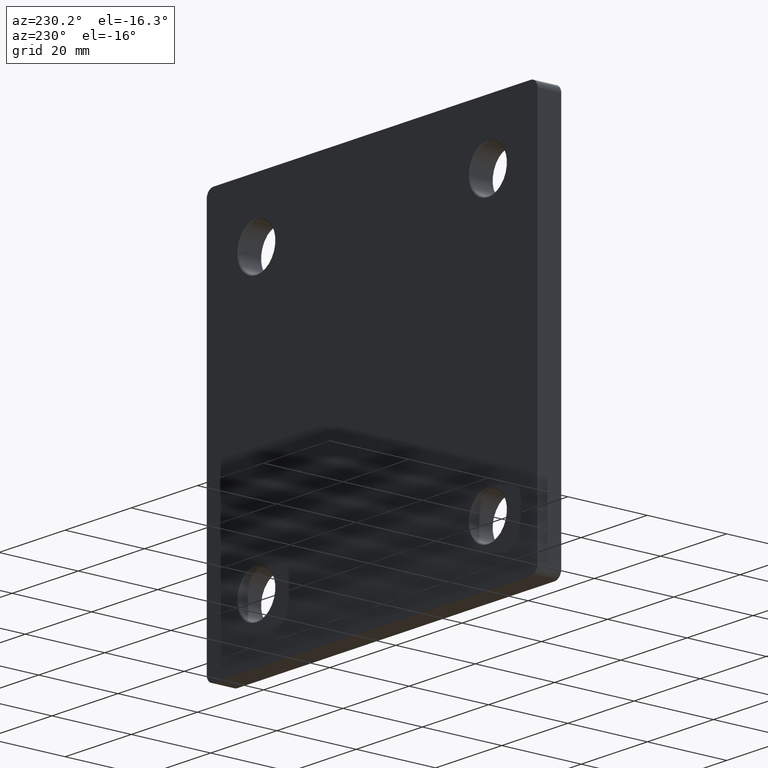
[diagram: clean part render]
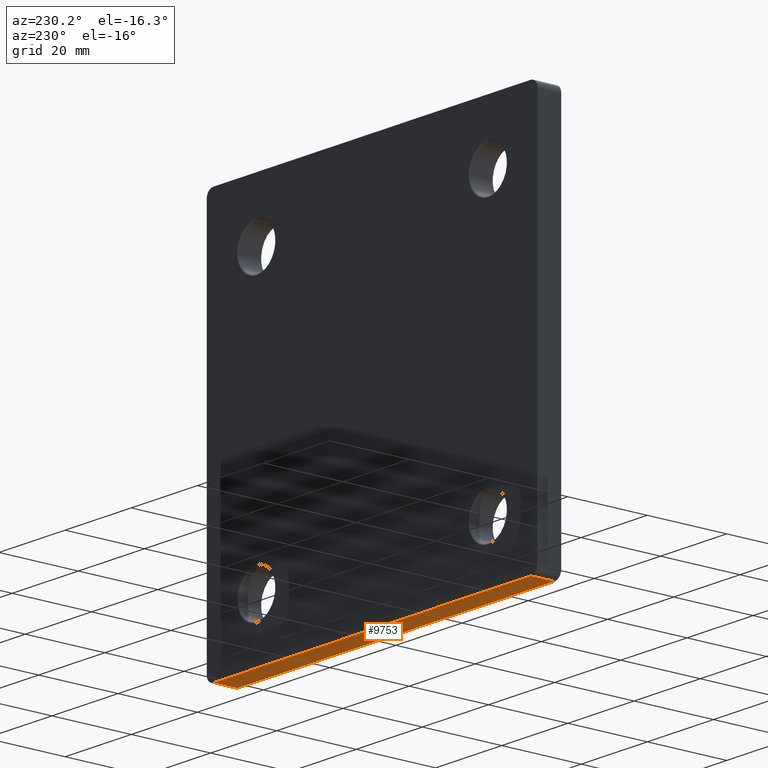
[diagram: same view with one face highlighted and labeled with its STEP entity id]
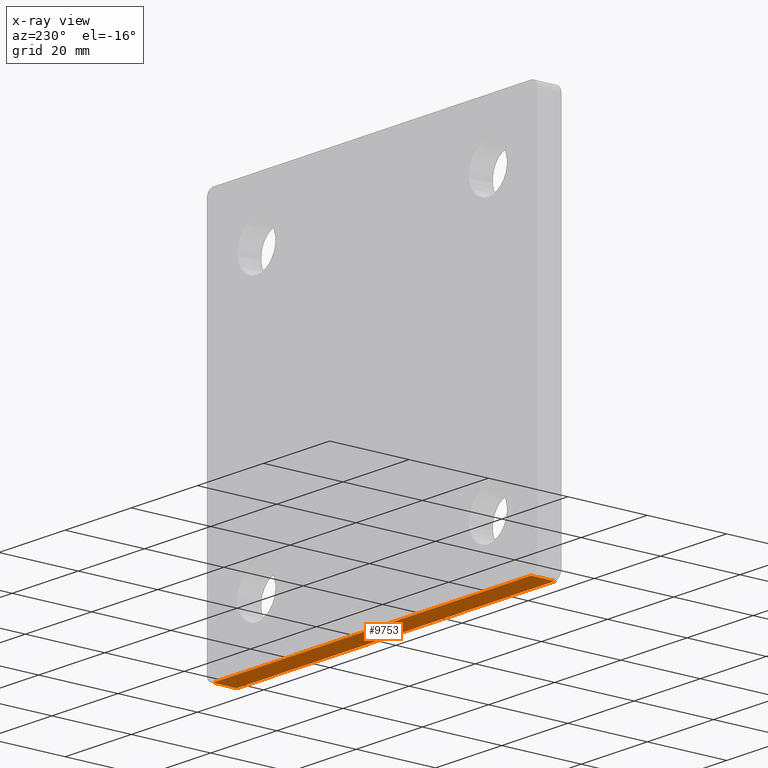
[diagram: x-ray of the same camera — body ghosted, the highlighted face saturated]
A machine part, auxiliary view. The second image highlights one B-rep face of the part: STEP entity #9753.
The next image is the same camera in x-ray: the body ghosted, the highlighted face saturated — about 0% of this face is hidden behind the body in this view.
In plain terms, the highlighted planar face has unit normal (0, -0, 1).
Its self-contained STEP definition (entity closure, byte-faithful):
#213 = CARTESIAN_POINT ( 'NONE',  ( -50.00000000000000000, 0.000000000000000000, -49.99999999999998579 ) ) ;
#708 = DIRECTION ( 'NONE',  ( 0.000000000000000000, -1.000000000000000000, 0.000000000000000000 ) ) ;
#992 = VECTOR ( 'NONE', #708, 1000.000000000000000 ) ;
#1359 = CARTESIAN_POINT ( 'NONE',  ( -50.00000000000000000, 6.000000000000000000, -49.99999999999998579 ) ) ;
#1578 = EDGE_CURVE ( 'NONE', #10343, #10729, #7021, .T. ) ;
#2079 = CARTESIAN_POINT ( 'NONE',  ( 47.99999999999995737, 0.000000000000000000, -49.99999999999999289 ) ) ;
#2409 = EDGE_CURVE ( 'NONE', #11531, #8196, #4564, .T. ) ;
#2612 = CARTESIAN_POINT ( 'NONE',  ( -48.00000000000000000, 6.000000000000000000, -49.99999999999998579 ) ) ;
#2778 = DIRECTION ( 'NONE',  ( -1.000000000000000000, -0.000000000000000000, 6.938893903907229610E-17 ) ) ;
#3049 = ORIENTED_EDGE ( 'NONE', *, *, #2409, .T. ) ;
#3113 = PLANE ( 'NONE',  #6054 ) ;
#3152 = ORIENTED_EDGE ( 'NONE', *, *, #10836, .F. ) ;
#3948 = FACE_OUTER_BOUND ( 'NONE', #7776, .T. ) ;
#4152 = DIRECTION ( 'NONE',  ( -0.000000000000000000, 1.000000000000000000, -0.000000000000000000 ) ) ;
#4564 = LINE ( 'NONE', #5099, #6294 ) ;
#4926 = DIRECTION ( 'NONE',  ( 1.000000000000000000, 0.000000000000000000, -6.938893903907228378E-17 ) ) ;
#5099 = CARTESIAN_POINT ( 'NONE',  ( -48.00000000000000000, 6.000000000000000000, -49.99999999999998579 ) ) ;
#5179 = CARTESIAN_POINT ( 'NONE',  ( 47.99999999999995737, 6.000000000000000000, -49.99999999999999289 ) ) ;
#5345 = LINE ( 'NONE', #1359, #6339 ) ;
#5695 = CARTESIAN_POINT ( 'NONE',  ( -50.00000000000000000, 6.000000000000000000, -49.99999999999998579 ) ) ;
#5718 = ORIENTED_EDGE ( 'NONE', *, *, #1578, .T. ) ;
#5749 = CARTESIAN_POINT ( 'NONE',  ( -48.00000000000000000, 0.000000000000000000, -49.99999999999998579 ) ) ;
#5780 = EDGE_CURVE ( 'NONE', #10729, #11531, #7245, .T. ) ;
#6048 = CARTESIAN_POINT ( 'NONE',  ( 47.99999999999998579, 6.000000000000000000, -49.99999999999999289 ) ) ;
#6054 = AXIS2_PLACEMENT_3D ( 'NONE', #5695, #9342, #4926 ) ;
#6294 = VECTOR ( 'NONE', #4152, 1000.000000000000000 ) ;
#6339 = VECTOR ( 'NONE', #7613, 1000.000000000000000 ) ;
#7021 = LINE ( 'NONE', #6048, #992 ) ;
#7245 = LINE ( 'NONE', #213, #9781 ) ;
#7613 = DIRECTION ( 'NONE',  ( -1.000000000000000000, -0.000000000000000000, 6.938893903907229610E-17 ) ) ;
#7776 = EDGE_LOOP ( 'NONE', ( #3152, #5718, #9840, #3049 ) ) ;
#8196 = VERTEX_POINT ( 'NONE', #2612 ) ;
#9342 = DIRECTION ( 'NONE',  ( 6.938893903907228378E-17, -0.000000000000000000, 1.000000000000000000 ) ) ;
#9753 = ADVANCED_FACE ( 'NONE', ( #3948 ), #3113, .F. ) ;
#9781 = VECTOR ( 'NONE', #2778, 1000.000000000000000 ) ;
#9840 = ORIENTED_EDGE ( 'NONE', *, *, #5780, .T. ) ;
#10343 = VERTEX_POINT ( 'NONE', #5179 ) ;
#10729 = VERTEX_POINT ( 'NONE', #2079 ) ;
#10836 = EDGE_CURVE ( 'NONE', #10343, #8196, #5345, .T. ) ;
#11531 = VERTEX_POINT ( 'NONE', #5749 ) ;